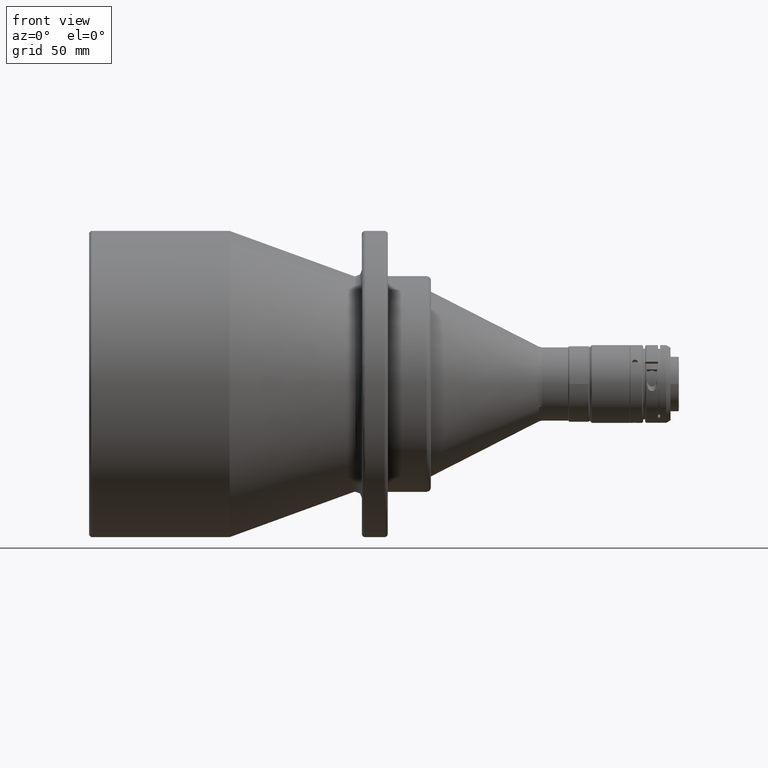
[diagram: clean part render]
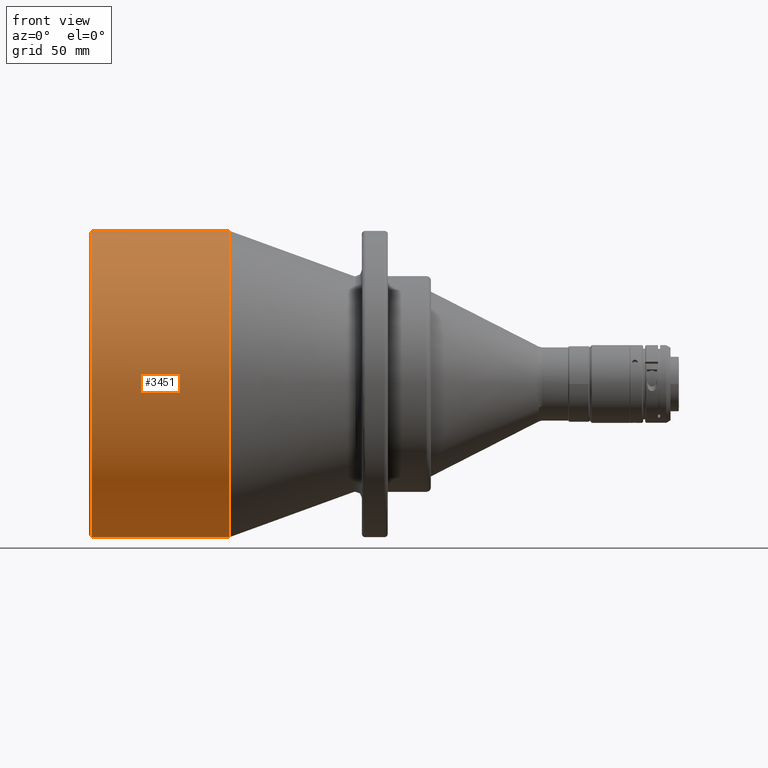
[diagram: same view with one face highlighted and labeled with its STEP entity id]
A machine part, front view. The second image highlights one B-rep face of the part: STEP entity #3451.
In plain terms, the highlighted cylindrical surface (partial cylindrical patch) has radius 71 mm, axis along (-1, 0, 0).
Its self-contained STEP definition (entity closure, byte-faithful):
#34 = EDGE_LOOP ( 'NONE', ( #5015, #5006, #3054, #5606 ) ) ;
#881 = CARTESIAN_POINT ( 'NONE',  ( 0.9999999999998898700, 0.0000000000000000000, 0.0000000000000000000 ) ) ;
#1190 = DIRECTION ( 'NONE',  ( -1.000000000000000000, 0.0000000000000000000, 0.0000000000000000000 ) ) ;
#1324 = CYLINDRICAL_SURFACE ( 'NONE', #1372, 71.00000000000001400 ) ;
#1372 = AXIS2_PLACEMENT_3D ( 'NONE', #5555, #3473, #3034 ) ;
#1599 = DIRECTION ( 'NONE',  ( 1.000000000000000000, -0.0000000000000000000, -0.0000000000000000000 ) ) ;
#1622 = DIRECTION ( 'NONE',  ( 0.0000000000000000000, 0.0000000000000000000, 1.000000000000000000 ) ) ;
#1948 = CIRCLE ( 'NONE', #4556, 71.00000000000001400 ) ;
#2033 = CARTESIAN_POINT ( 'NONE',  ( 64.99999999995507900, -1.747481210950621500E-008, -71.00000000000001400 ) ) ;
#2398 = EDGE_CURVE ( 'NONE', #5754, #6134, #4912, .T. ) ;
#2473 = VERTEX_POINT ( 'NONE', #2535 ) ;
#2480 = VECTOR ( 'NONE', #1190, 1000.000000000000000 ) ;
#2535 = CARTESIAN_POINT ( 'NONE',  ( 64.99999999997754700, -5.100278094752037300E-009, 71.00000000000001400 ) ) ;
#2688 = LINE ( 'NONE', #4897, #3347 ) ;
#2726 = EDGE_CURVE ( 'NONE', #5761, #6134, #2688, .T. ) ;
#3034 = DIRECTION ( 'NONE',  ( 0.0000000000000000000, 0.0000000000000000000, 1.000000000000000000 ) ) ;
#3054 = ORIENTED_EDGE ( 'NONE', *, *, #5600, .T. ) ;
#3347 = VECTOR ( 'NONE', #3399, 1000.000000000000000 ) ;
#3399 = DIRECTION ( 'NONE',  ( -1.000000000000000000, 0.0000000000000000000, 0.0000000000000000000 ) ) ;
#3451 = ADVANCED_FACE ( 'NONE', ( #3780 ), #1324, .T. ) ;
#3473 = DIRECTION ( 'NONE',  ( -1.000000000000000000, 0.0000000000000000000, 0.0000000000000000000 ) ) ;
#3475 = LINE ( 'NONE', #5295, #2480 ) ;
#3770 = EDGE_CURVE ( 'NONE', #2473, #5761, #1948, .T. ) ;
#3780 = FACE_OUTER_BOUND ( 'NONE', #34, .T. ) ;
#3802 = CARTESIAN_POINT ( 'NONE',  ( 0.9999999999998898700, 8.694992273946208100E-015, -71.00000000000001400 ) ) ;
#4542 = DIRECTION ( 'NONE',  ( 1.000000000000000000, 0.0000000000000000000, 0.0000000000000000000 ) ) ;
#4556 = AXIS2_PLACEMENT_3D ( 'NONE', #4742, #1599, #1622 ) ;
#4742 = CARTESIAN_POINT ( 'NONE',  ( 65.00000000000000000, 0.0000000000000000000, 0.0000000000000000000 ) ) ;
#4897 = CARTESIAN_POINT ( 'NONE',  ( 65.00000000000000000, 8.694992273946208100E-015, -71.00000000000001400 ) ) ;
#4912 = CIRCLE ( 'NONE', #6353, 71.00000000000001400 ) ;
#5006 = ORIENTED_EDGE ( 'NONE', *, *, #3770, .F. ) ;
#5015 = ORIENTED_EDGE ( 'NONE', *, *, #2726, .F. ) ;
#5069 = DIRECTION ( 'NONE',  ( 1.551478038373622900E-015, 0.0000000000000000000, -1.000000000000000000 ) ) ;
#5099 = CARTESIAN_POINT ( 'NONE',  ( 0.9999999999998898700, 0.0000000000000000000, 71.00000000000001400 ) ) ;
#5295 = CARTESIAN_POINT ( 'NONE',  ( 65.00000000000000000, 0.0000000000000000000, 71.00000000000001400 ) ) ;
#5555 = CARTESIAN_POINT ( 'NONE',  ( 65.00000000000000000, 0.0000000000000000000, 0.0000000000000000000 ) ) ;
#5600 = EDGE_CURVE ( 'NONE', #2473, #5754, #3475, .T. ) ;
#5606 = ORIENTED_EDGE ( 'NONE', *, *, #2398, .T. ) ;
#5754 = VERTEX_POINT ( 'NONE', #5099 ) ;
#5761 = VERTEX_POINT ( 'NONE', #2033 ) ;
#6134 = VERTEX_POINT ( 'NONE', #3802 ) ;
#6353 = AXIS2_PLACEMENT_3D ( 'NONE', #881, #4542, #5069 ) ;